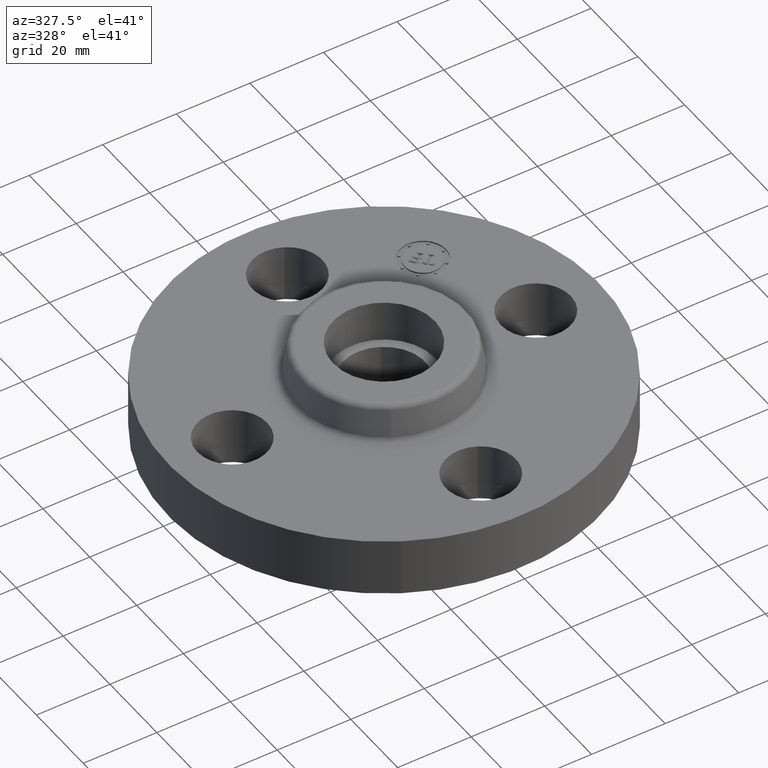
[diagram: clean part render]
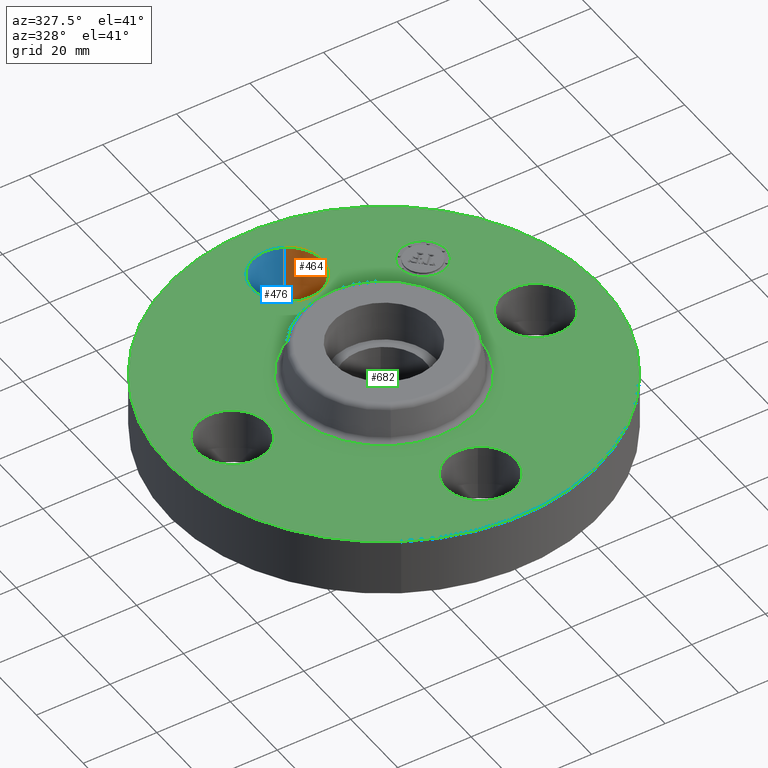
[diagram: same view with three faces highlighted in distinct colors, each labeled with its STEP entity id]
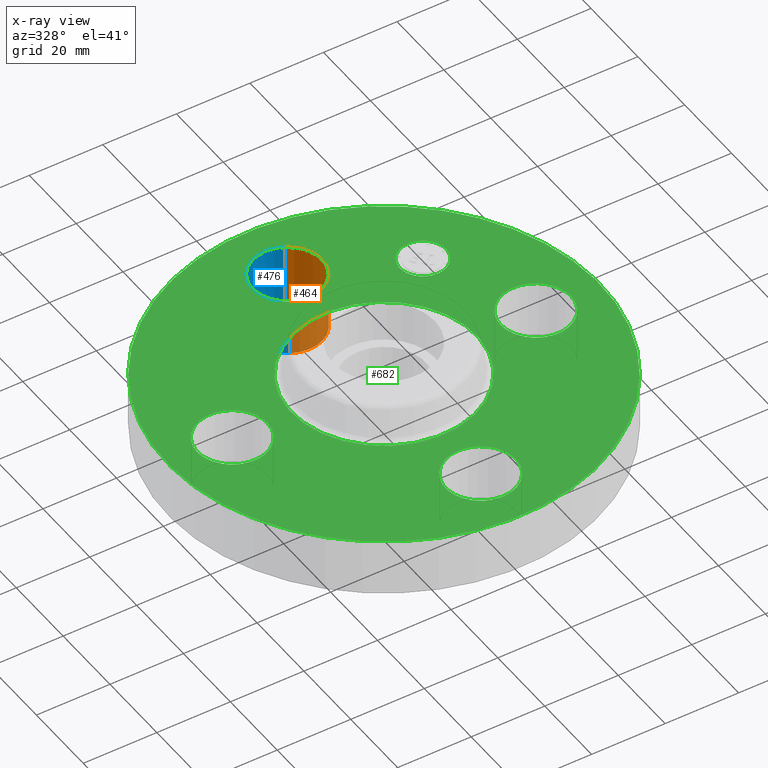
[diagram: x-ray of the same camera — body ghosted, the three highlighted faces saturated]
A machine part, auxiliary view with three faces highlighted in distinct colors.
The next image is the same camera in x-ray (body ghosted, the three faces saturated) — at least one of them is partly hidden behind the body in this view.
Their STEP definitions:

[orange] entity #464 — the highlighted cylindrical surface (partial cylindrical patch) has radius 9.525 mm, axis along (0, 0, -1).
#212=AXIS2_PLACEMENT_3D('Circle Axis2P3D',#210,#211,$) ;
#437=AXIS2_PLACEMENT_3D('Cylinder Axis2P3D',#434,#435,#436) ;
#455=AXIS2_PLACEMENT_3D('Circle Axis2P3D',#453,#454,$) ;
#205=CARTESIAN_POINT('Vertex',(-0.179784576977,1.2959065393,0.)) ;
#207=CARTESIAN_POINT('Vertex',(0.179784576977,1.95409346072,0.)) ;
#210=CARTESIAN_POINT('Axis2P3D Location',(-2.44773580232E-016,1.62500000001,0.)) ;
#434=CARTESIAN_POINT('Axis2P3D Location',(-2.98507657293E-016,1.62500000001,0.616062992128)) ;
#439=CARTESIAN_POINT('Line Origine',(0.179784576977,1.95409346072,0.310000000001)) ;
#443=CARTESIAN_POINT('Vertex',(0.179784576977,1.95409346072,0.620000000002)) ;
#446=CARTESIAN_POINT('Line Origine',(-0.179784576977,1.2959065393,0.310000000001)) ;
#450=CARTESIAN_POINT('Vertex',(-0.179784576977,1.2959065393,0.620000000002)) ;
#453=CARTESIAN_POINT('Axis2P3D Location',(-2.98507657293E-016,1.62500000001,0.620000000002)) ;
#211=DIRECTION('Axis2P3D Direction',(0.,0.,-0.0393700787402)) ;
#435=DIRECTION('Axis2P3D Direction',(0.,0.,-0.0393700787402)) ;
#436=DIRECTION('Axis2P3D XDirection',(-0.0188750212049,-0.0345504945626,-0.)) ;
#440=DIRECTION('Vector Direction',(0.,0.,-0.0393700787402)) ;
#447=DIRECTION('Vector Direction',(0.,0.,-0.0393700787402)) ;
#454=DIRECTION('Axis2P3D Direction',(0.,0.,-0.0393700787402)) ;
#441=VECTOR('Line Direction',#440,0.0393700787402) ;
#448=VECTOR('Line Direction',#447,0.0393700787402) ;
#459=ORIENTED_EDGE('',*,*,#445,.F.) ;
#460=ORIENTED_EDGE('',*,*,#214,.T.) ;
#461=ORIENTED_EDGE('',*,*,#452,.T.) ;
#462=ORIENTED_EDGE('',*,*,#457,.F.) ;
#464=ADVANCED_FACE('PartBody',(#463),#438,.F.) ;
#213=CIRCLE('generated circle',#212,0.375000000001) ;
#456=CIRCLE('generated circle',#455,0.375000000001) ;
#438=CYLINDRICAL_SURFACE('generated cylinder',#437,0.375000000001) ;
#214=EDGE_CURVE('',#208,#206,#213,.T.) ;
#445=EDGE_CURVE('',#208,#444,#442,.F.) ;
#452=EDGE_CURVE('',#206,#451,#449,.F.) ;
#457=EDGE_CURVE('',#444,#451,#456,.T.) ;
#458=EDGE_LOOP('',(#459,#460,#461,#462)) ;
#463=FACE_OUTER_BOUND('',#458,.T.) ;
#442=LINE('Line',#439,#441) ;
#449=LINE('Line',#446,#448) ;
#206=VERTEX_POINT('',#205) ;
#208=VERTEX_POINT('',#207) ;
#444=VERTEX_POINT('',#443) ;
#451=VERTEX_POINT('',#450) ;

[blue] entity #476 — the highlighted cylindrical surface (partial cylindrical patch) has radius 9.525 mm, axis along (0, 0, -1).
#203=AXIS2_PLACEMENT_3D('Circle Axis2P3D',#201,#202,$) ;
#437=AXIS2_PLACEMENT_3D('Cylinder Axis2P3D',#434,#435,#436) ;
#467=AXIS2_PLACEMENT_3D('Circle Axis2P3D',#465,#466,$) ;
#201=CARTESIAN_POINT('Axis2P3D Location',(-4.19611851827E-016,1.62500000001,0.)) ;
#205=CARTESIAN_POINT('Vertex',(-0.179784576977,1.2959065393,0.)) ;
#207=CARTESIAN_POINT('Vertex',(0.179784576977,1.95409346072,0.)) ;
#434=CARTESIAN_POINT('Axis2P3D Location',(-2.98507657293E-016,1.62500000001,0.616062992128)) ;
#439=CARTESIAN_POINT('Line Origine',(0.179784576977,1.95409346072,0.310000000001)) ;
#443=CARTESIAN_POINT('Vertex',(0.179784576977,1.95409346072,0.620000000002)) ;
#446=CARTESIAN_POINT('Line Origine',(-0.179784576977,1.2959065393,0.310000000001)) ;
#450=CARTESIAN_POINT('Vertex',(-0.179784576977,1.2959065393,0.620000000002)) ;
#465=CARTESIAN_POINT('Axis2P3D Location',(-2.98507657293E-016,1.62500000001,0.620000000002)) ;
#202=DIRECTION('Axis2P3D Direction',(0.,0.,-0.0393700787402)) ;
#435=DIRECTION('Axis2P3D Direction',(0.,0.,-0.0393700787402)) ;
#436=DIRECTION('Axis2P3D XDirection',(-0.0188750212049,-0.0345504945626,-0.)) ;
#440=DIRECTION('Vector Direction',(0.,0.,-0.0393700787402)) ;
#447=DIRECTION('Vector Direction',(0.,0.,-0.0393700787402)) ;
#466=DIRECTION('Axis2P3D Direction',(0.,0.,-0.0393700787402)) ;
#441=VECTOR('Line Direction',#440,0.0393700787402) ;
#448=VECTOR('Line Direction',#447,0.0393700787402) ;
#471=ORIENTED_EDGE('',*,*,#452,.F.) ;
#472=ORIENTED_EDGE('',*,*,#209,.T.) ;
#473=ORIENTED_EDGE('',*,*,#445,.T.) ;
#474=ORIENTED_EDGE('',*,*,#469,.F.) ;
#476=ADVANCED_FACE('PartBody',(#475),#438,.F.) ;
#204=CIRCLE('generated circle',#203,0.375000000001) ;
#468=CIRCLE('generated circle',#467,0.375000000001) ;
#438=CYLINDRICAL_SURFACE('generated cylinder',#437,0.375000000001) ;
#209=EDGE_CURVE('',#206,#208,#204,.T.) ;
#445=EDGE_CURVE('',#208,#444,#442,.F.) ;
#452=EDGE_CURVE('',#206,#451,#449,.F.) ;
#469=EDGE_CURVE('',#451,#444,#468,.T.) ;
#470=EDGE_LOOP('',(#471,#472,#473,#474)) ;
#475=FACE_OUTER_BOUND('',#470,.T.) ;
#442=LINE('Line',#439,#441) ;
#449=LINE('Line',#446,#448) ;
#206=VERTEX_POINT('',#205) ;
#208=VERTEX_POINT('',#207) ;
#444=VERTEX_POINT('',#443) ;
#451=VERTEX_POINT('',#450) ;

[green] entity #682 — the highlighted planar face has unit normal (0, 0, -1).
#234=AXIS2_PLACEMENT_3D('Circle Axis2P3D',#232,#233,$) ;
#253=AXIS2_PLACEMENT_3D('Circle Axis2P3D',#251,#252,$) ;
#270=AXIS2_PLACEMENT_3D('Circle Axis2P3D',#268,#269,$) ;
#305=AXIS2_PLACEMENT_3D('Circle Axis2P3D',#303,#304,$) ;
#455=AXIS2_PLACEMENT_3D('Circle Axis2P3D',#453,#454,$) ;
#467=AXIS2_PLACEMENT_3D('Circle Axis2P3D',#465,#466,$) ;
#498=AXIS2_PLACEMENT_3D('Circle Axis2P3D',#496,#497,$) ;
#510=AXIS2_PLACEMENT_3D('Circle Axis2P3D',#508,#509,$) ;
#541=AXIS2_PLACEMENT_3D('Circle Axis2P3D',#539,#540,$) ;
#553=AXIS2_PLACEMENT_3D('Circle Axis2P3D',#551,#552,$) ;
#584=AXIS2_PLACEMENT_3D('Circle Axis2P3D',#582,#583,$) ;
#596=AXIS2_PLACEMENT_3D('Circle Axis2P3D',#594,#595,$) ;
#638=AXIS2_PLACEMENT_3D('Plane Axis2P3D',#635,#636,#637) ;
#666=AXIS2_PLACEMENT_3D('Circle Axis2P3D',#664,#665,$) ;
#675=AXIS2_PLACEMENT_3D('Circle Axis2P3D',#673,#674,$) ;
#229=CARTESIAN_POINT('Vertex',(-1.10747299418,-2.02721571797,0.620000000002)) ;
#232=CARTESIAN_POINT('Axis2P3D Location',(0.,0.,0.620000000002)) ;
#236=CARTESIAN_POINT('Vertex',(1.10747299418,2.02721571797,0.620000000002)) ;
#251=CARTESIAN_POINT('Axis2P3D Location',(0.,0.,0.620000000002)) ;
#268=CARTESIAN_POINT('Axis2P3D Location',(0.,0.,0.620000000002)) ;
#272=CARTESIAN_POINT('Vertex',(0.474797153847,0.869110360421,0.620000000002)) ;
#274=CARTESIAN_POINT('Vertex',(-0.474797153847,-0.869110360421,0.620000000002)) ;
#303=CARTESIAN_POINT('Axis2P3D Location',(0.,0.,0.620000000002)) ;
#443=CARTESIAN_POINT('Vertex',(0.179784576977,1.95409346072,0.620000000002)) ;
#450=CARTESIAN_POINT('Vertex',(-0.179784576977,1.2959065393,0.620000000002)) ;
#453=CARTESIAN_POINT('Axis2P3D Location',(-2.98507657293E-016,1.62500000001,0.620000000002)) ;
#465=CARTESIAN_POINT('Axis2P3D Location',(-2.98507657293E-016,1.62500000001,0.620000000002)) ;
#486=CARTESIAN_POINT('Vertex',(-1.95409346072,0.179784576977,0.620000000002)) ;
#493=CARTESIAN_POINT('Vertex',(-1.2959065393,-0.179784576977,0.620000000002)) ;
#496=CARTESIAN_POINT('Axis2P3D Location',(-1.62500000001,-1.99005104862E-016,0.620000000002)) ;
#508=CARTESIAN_POINT('Axis2P3D Location',(-1.62500000001,-1.99005104862E-016,0.620000000002)) ;
#529=CARTESIAN_POINT('Vertex',(-0.179784576977,-1.95409346072,0.620000000002)) ;
#536=CARTESIAN_POINT('Vertex',(0.179784576977,-1.2959065393,0.620000000002)) ;
#539=CARTESIAN_POINT('Axis2P3D Location',(-1.8023868212E-016,-1.62500000001,0.620000000002)) ;
#551=CARTESIAN_POINT('Axis2P3D Location',(-1.8023868212E-016,-1.62500000001,0.620000000002)) ;
#572=CARTESIAN_POINT('Vertex',(1.2959065393,0.179784576977,0.620000000002)) ;
#579=CARTESIAN_POINT('Vertex',(1.95409346072,-0.179784576977,0.620000000002)) ;
#582=CARTESIAN_POINT('Axis2P3D Location',(1.62500000001,0.,0.620000000002)) ;
#594=CARTESIAN_POINT('Axis2P3D Location',(1.62500000001,0.,0.620000000002)) ;
#635=CARTESIAN_POINT('Axis2P3D Location',(0.,2.31000000001,0.620000000002)) ;
#664=CARTESIAN_POINT('Axis2P3D Location',(1.14904851943,1.14904851943,0.620000000002)) ;
#668=CARTESIAN_POINT('Vertex',(0.974039591088,1.32405744778,0.620000000002)) ;
#670=CARTESIAN_POINT('Vertex',(1.32405744778,0.974039591088,0.620000000002)) ;
#673=CARTESIAN_POINT('Axis2P3D Location',(1.14904851943,1.14904851943,0.620000000002)) ;
#233=DIRECTION('Axis2P3D Direction',(0.,0.,-0.0393700787402)) ;
#252=DIRECTION('Axis2P3D Direction',(0.,0.,-0.0393700787402)) ;
#269=DIRECTION('Axis2P3D Direction',(0.,0.,-0.0393700787402)) ;
#304=DIRECTION('Axis2P3D Direction',(0.,0.,-0.0393700787402)) ;
#454=DIRECTION('Axis2P3D Direction',(0.,0.,-0.0393700787402)) ;
#466=DIRECTION('Axis2P3D Direction',(0.,0.,-0.0393700787402)) ;
#497=DIRECTION('Axis2P3D Direction',(-0.,0.,-0.0393700787402)) ;
#509=DIRECTION('Axis2P3D Direction',(-0.,0.,-0.0393700787402)) ;
#540=DIRECTION('Axis2P3D Direction',(0.,-0.,-0.0393700787402)) ;
#552=DIRECTION('Axis2P3D Direction',(0.,-0.,-0.0393700787402)) ;
#583=DIRECTION('Axis2P3D Direction',(0.,-0.,-0.0393700787402)) ;
#595=DIRECTION('Axis2P3D Direction',(0.,-0.,-0.0393700787402)) ;
#636=DIRECTION('Axis2P3D Direction',(0.,0.,-0.0393700787402)) ;
#637=DIRECTION('Axis2P3D XDirection',(0.0393700787402,0.,0.)) ;
#665=DIRECTION('Axis2P3D Direction',(0.,0.,-0.0393700787402)) ;
#674=DIRECTION('Axis2P3D Direction',(0.,0.,-0.0393700787402)) ;
#641=ORIENTED_EDGE('',*,*,#255,.F.) ;
#642=ORIENTED_EDGE('',*,*,#238,.F.) ;
#645=ORIENTED_EDGE('',*,*,#586,.T.) ;
#646=ORIENTED_EDGE('',*,*,#598,.T.) ;
#649=ORIENTED_EDGE('',*,*,#307,.T.) ;
#650=ORIENTED_EDGE('',*,*,#276,.T.) ;
#653=ORIENTED_EDGE('',*,*,#543,.T.) ;
#654=ORIENTED_EDGE('',*,*,#555,.T.) ;
#657=ORIENTED_EDGE('',*,*,#500,.T.) ;
#658=ORIENTED_EDGE('',*,*,#512,.T.) ;
#661=ORIENTED_EDGE('',*,*,#457,.T.) ;
#662=ORIENTED_EDGE('',*,*,#469,.T.) ;
#679=ORIENTED_EDGE('',*,*,#672,.T.) ;
#680=ORIENTED_EDGE('',*,*,#677,.T.) ;
#647=FACE_BOUND('',#644,.T.) ;
#651=FACE_BOUND('',#648,.T.) ;
#655=FACE_BOUND('',#652,.T.) ;
#659=FACE_BOUND('',#656,.T.) ;
#663=FACE_BOUND('',#660,.T.) ;
#681=FACE_BOUND('',#678,.T.) ;
#682=ADVANCED_FACE('PartBody',(#643,#647,#651,#655,#659,#663,#681),#639,.F.) ;
#235=CIRCLE('generated circle',#234,2.31000000001) ;
#254=CIRCLE('generated circle',#253,2.31000000001) ;
#271=CIRCLE('generated circle',#270,0.990345977875) ;
#306=CIRCLE('generated circle',#305,0.990345977875) ;
#456=CIRCLE('generated circle',#455,0.375000000001) ;
#468=CIRCLE('generated circle',#467,0.375000000001) ;
#499=CIRCLE('generated circle',#498,0.375000000002) ;
#511=CIRCLE('generated circle',#510,0.375000000002) ;
#542=CIRCLE('generated circle',#541,0.375000000001) ;
#554=CIRCLE('generated circle',#553,0.375000000001) ;
#585=CIRCLE('generated circle',#584,0.375000000001) ;
#597=CIRCLE('generated circle',#596,0.375000000001) ;
#667=CIRCLE('generated circle',#666,0.247500000001) ;
#676=CIRCLE('generated circle',#675,0.247500000001) ;
#238=EDGE_CURVE('',#230,#237,#235,.T.) ;
#255=EDGE_CURVE('',#237,#230,#254,.T.) ;
#276=EDGE_CURVE('',#273,#275,#271,.T.) ;
#307=EDGE_CURVE('',#275,#273,#306,.T.) ;
#457=EDGE_CURVE('',#444,#451,#456,.T.) ;
#469=EDGE_CURVE('',#451,#444,#468,.T.) ;
#500=EDGE_CURVE('',#487,#494,#499,.T.) ;
#512=EDGE_CURVE('',#494,#487,#511,.T.) ;
#543=EDGE_CURVE('',#530,#537,#542,.T.) ;
#555=EDGE_CURVE('',#537,#530,#554,.T.) ;
#586=EDGE_CURVE('',#573,#580,#585,.T.) ;
#598=EDGE_CURVE('',#580,#573,#597,.T.) ;
#672=EDGE_CURVE('',#669,#671,#667,.T.) ;
#677=EDGE_CURVE('',#671,#669,#676,.T.) ;
#640=EDGE_LOOP('',(#641,#642)) ;
#644=EDGE_LOOP('',(#645,#646)) ;
#648=EDGE_LOOP('',(#649,#650)) ;
#652=EDGE_LOOP('',(#653,#654)) ;
#656=EDGE_LOOP('',(#657,#658)) ;
#660=EDGE_LOOP('',(#661,#662)) ;
#678=EDGE_LOOP('',(#679,#680)) ;
#643=FACE_OUTER_BOUND('',#640,.T.) ;
#639=PLANE('',#638) ;
#230=VERTEX_POINT('',#229) ;
#237=VERTEX_POINT('',#236) ;
#273=VERTEX_POINT('',#272) ;
#275=VERTEX_POINT('',#274) ;
#444=VERTEX_POINT('',#443) ;
#451=VERTEX_POINT('',#450) ;
#487=VERTEX_POINT('',#486) ;
#494=VERTEX_POINT('',#493) ;
#530=VERTEX_POINT('',#529) ;
#537=VERTEX_POINT('',#536) ;
#573=VERTEX_POINT('',#572) ;
#580=VERTEX_POINT('',#579) ;
#669=VERTEX_POINT('',#668) ;
#671=VERTEX_POINT('',#670) ;